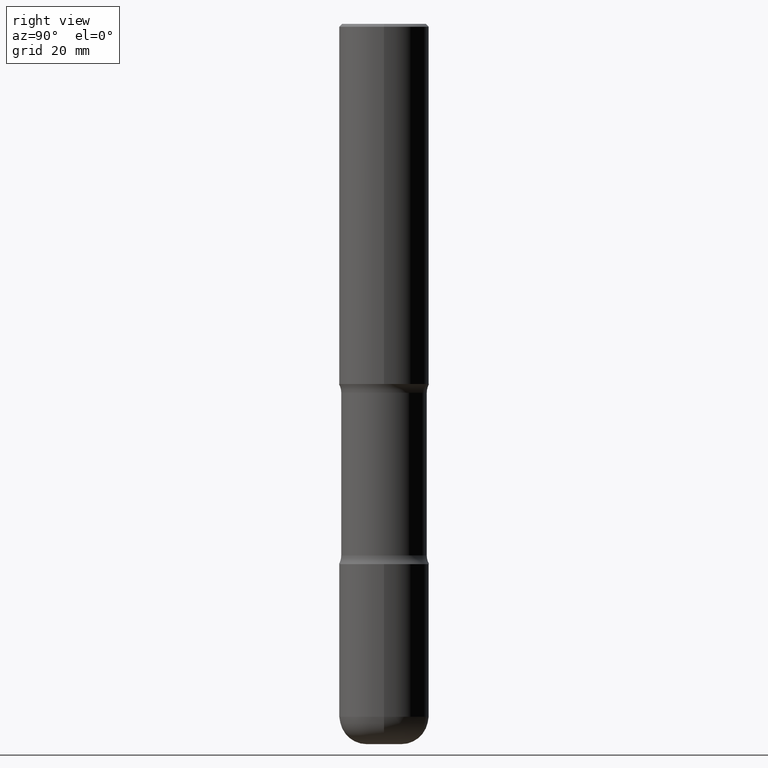
[diagram: clean part render]
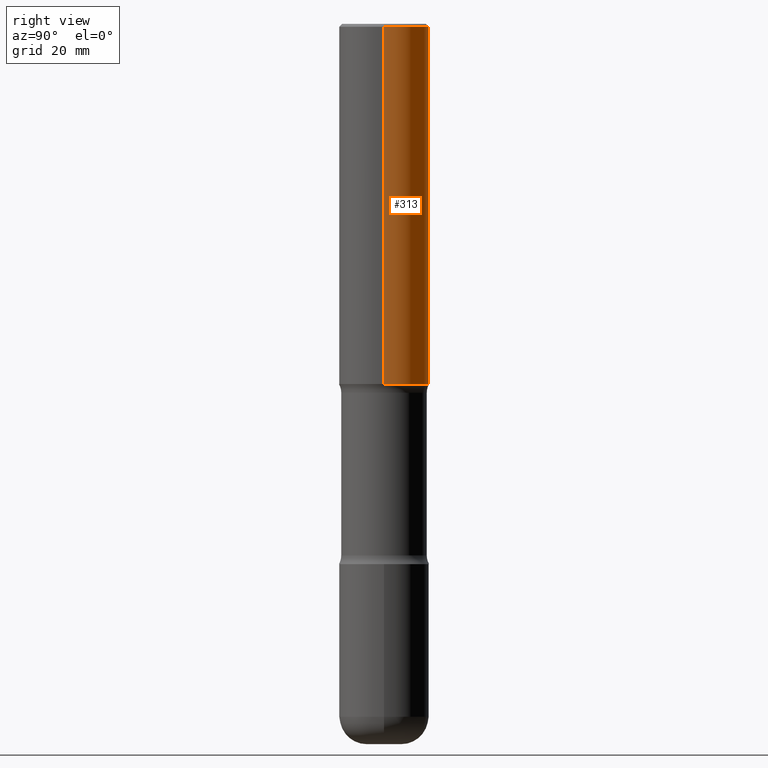
[diagram: same view with one face highlighted and labeled with its STEP entity id]
A machine part, right view. The second image highlights one B-rep face of the part: STEP entity #313.
In plain terms, the highlighted cylindrical surface (partial cylindrical patch) has radius 7.9375 mm, axis along (-0, 0, 1).
Its self-contained STEP definition (entity closure, byte-faithful):
#29 = CARTESIAN_POINT ( 'NONE',  ( -0.3125000000000002220, -2.178820437692046306E-15, -2.499999999999999556 ) ) ;
#32 = ORIENTED_EDGE ( 'NONE', *, *, #295, .T. ) ;
#38 = EDGE_LOOP ( 'NONE', ( #32, #350, #164, #289 ) ) ;
#44 = AXIS2_PLACEMENT_3D ( 'NONE', #69, #288, #248 ) ;
#68 = VERTEX_POINT ( 'NONE', #400 ) ;
#69 = CARTESIAN_POINT ( 'NONE',  ( 0.000000000000000000, 0.000000000000000000, 0.000000000000000000 ) ) ;
#87 = AXIS2_PLACEMENT_3D ( 'NONE', #183, #355, #526 ) ;
#120 = FACE_OUTER_BOUND ( 'NONE', #38, .T. ) ;
#131 = VECTOR ( 'NONE', #558, 39.37007874015748143 ) ;
#147 = CARTESIAN_POINT ( 'NONE',  ( -0.3124999999999998890, 2.112346210000094260E-15, -0.02000000000000006981 ) ) ;
#154 = VECTOR ( 'NONE', #270, 39.37007874015748143 ) ;
#164 = ORIENTED_EDGE ( 'NONE', *, *, #557, .F. ) ;
#183 = CARTESIAN_POINT ( 'NONE',  ( 4.890937612370289799E-31, -6.982962677686315028E-17, -0.02000000000000006981 ) ) ;
#208 = CARTESIAN_POINT ( 'NONE',  ( 6.113672015462840371E-29, -8.728703347107863365E-15, -2.499999999999999556 ) ) ;
#226 = CARTESIAN_POINT ( 'NONE',  ( 0.3125000000000002220, -1.091087918388482329E-14, -2.499999999999999556 ) ) ;
#248 = DIRECTION ( 'NONE',  ( 1.000000000000000000, -6.982962677686266711E-15, 4.876176775795936353E-29 ) ) ;
#270 = DIRECTION ( 'NONE',  ( -2.445468806185136877E-29, 3.491481338843145188E-15, 1.000000000000000000 ) ) ;
#288 = DIRECTION ( 'NONE',  ( -2.445468806185136597E-29, 3.491481338843145583E-15, 1.000000000000000000 ) ) ;
#289 = ORIENTED_EDGE ( 'NONE', *, *, #415, .F. ) ;
#295 = EDGE_CURVE ( 'NONE', #525, #367, #413, .T. ) ;
#297 = CYLINDRICAL_SURFACE ( 'NONE', #44, 0.3125000000000000000 ) ;
#313 = ADVANCED_FACE ( 'NONE', ( #120 ), #297, .T. ) ;
#331 = DIRECTION ( 'NONE',  ( -2.445468806185136597E-29, 3.491481338843145583E-15, 1.000000000000000000 ) ) ;
#338 = DIRECTION ( 'NONE',  ( 1.000000000000000000, -6.982962677686266711E-15, 0.000000000000000000 ) ) ;
#350 = ORIENTED_EDGE ( 'NONE', *, *, #384, .T. ) ;
#355 = DIRECTION ( 'NONE',  ( -2.445468806185136597E-29, 3.491481338843145583E-15, 1.000000000000000000 ) ) ;
#367 = VERTEX_POINT ( 'NONE', #29 ) ;
#384 = EDGE_CURVE ( 'NONE', #367, #475, #385, .T. ) ;
#385 = LINE ( 'NONE', #388, #131 ) ;
#388 = CARTESIAN_POINT ( 'NONE',  ( -0.3125000000000000000, 2.220446049250313081E-15, -1.537167215704658232E-29 ) ) ;
#393 = AXIS2_PLACEMENT_3D ( 'NONE', #208, #331, #338 ) ;
#400 = CARTESIAN_POINT ( 'NONE',  ( 0.3124999999999998890, -2.213735251080466123E-15, -0.02000000000000006981 ) ) ;
#413 = CIRCLE ( 'NONE', #393, 0.3125000000000002220 ) ;
#415 = EDGE_CURVE ( 'NONE', #525, #68, #516, .T. ) ;
#443 = CARTESIAN_POINT ( 'NONE',  ( 0.3125000000000000000, -2.182175836776958347E-15, 1.523805242436230075E-29 ) ) ;
#475 = VERTEX_POINT ( 'NONE', #147 ) ;
#516 = LINE ( 'NONE', #443, #154 ) ;
#519 = CIRCLE ( 'NONE', #87, 0.3124999999999998890 ) ;
#525 = VERTEX_POINT ( 'NONE', #226 ) ;
#526 = DIRECTION ( 'NONE',  ( 1.000000000000000000, -6.982962677686266711E-15, 0.000000000000000000 ) ) ;
#557 = EDGE_CURVE ( 'NONE', #68, #475, #519, .T. ) ;
#558 = DIRECTION ( 'NONE',  ( -2.445468806185136877E-29, 3.491481338843145188E-15, 1.000000000000000000 ) ) ;